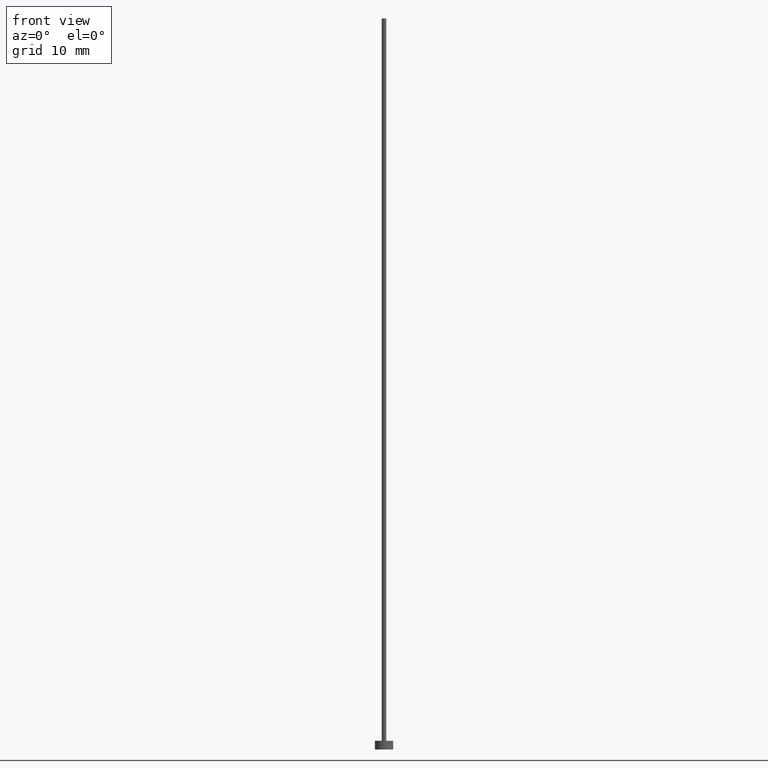
[diagram: clean part render]
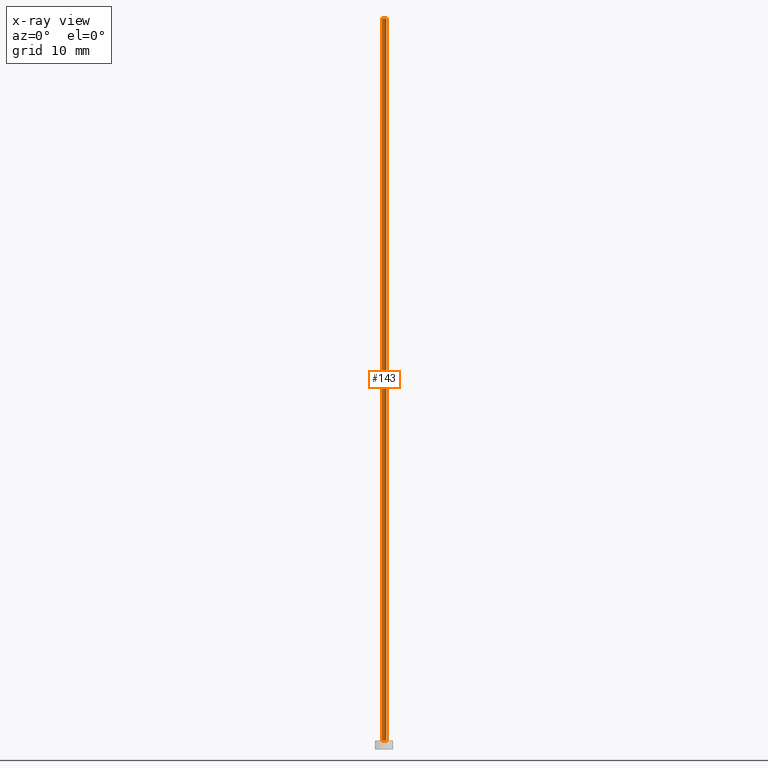
[diagram: x-ray — body ghosted, one internal face saturated and labeled with its STEP entity id]
A machine part, front view, then the same camera in x-ray: the body is ghosted and one INTERNAL B-rep face — a face not visible from any outside direction — is saturated and labeled: STEP entity #143.
In plain terms, the highlighted cylindrical surface (edge-blend (fillet) strip) has radius 0.3 mm, axis along (-0, -0, -1).
Its self-contained STEP definition (entity closure, byte-faithful):
#7 = DIRECTION ( 'NONE',  ( -0.000000000000000000, -0.000000000000000000, -1.000000000000000000 ) ) ;
#13 = ORIENTED_EDGE ( 'NONE', *, *, #102, .T. ) ;
#17 = DIRECTION ( 'NONE',  ( 0.000000000000000000, 0.000000000000000000, 1.000000000000000000 ) ) ;
#20 = VERTEX_POINT ( 'NONE', #122 ) ;
#33 = EDGE_CURVE ( 'NONE', #40, #20, #219, .T. ) ;
#35 = VERTEX_POINT ( 'NONE', #179 ) ;
#40 = VERTEX_POINT ( 'NONE', #222 ) ;
#42 = VECTOR ( 'NONE', #7, 1000.000000000000000 ) ;
#49 = AXIS2_PLACEMENT_3D ( 'NONE', #184, #205, #153 ) ;
#66 = VECTOR ( 'NONE', #71, 1000.000000000000000 ) ;
#71 = DIRECTION ( 'NONE',  ( -0.000000000000000000, -0.000000000000000000, -1.000000000000000000 ) ) ;
#85 = EDGE_CURVE ( 'NONE', #20, #35, #106, .T. ) ;
#88 = DIRECTION ( 'NONE',  ( 1.000000000000000000, 0.000000000000000000, 0.000000000000000000 ) ) ;
#101 = LINE ( 'NONE', #136, #66 ) ;
#102 = EDGE_CURVE ( 'NONE', #40, #207, #101, .T. ) ;
#106 = LINE ( 'NONE', #183, #42 ) ;
#110 = DIRECTION ( 'NONE',  ( 1.000000000000000000, 0.000000000000000000, 0.000000000000000000 ) ) ;
#122 = CARTESIAN_POINT ( 'NONE',  ( -0.2999999999999999889, 0.000000000000000000, 100.0000000000000000 ) ) ;
#129 = ORIENTED_EDGE ( 'NONE', *, *, #193, .T. ) ;
#136 = CARTESIAN_POINT ( 'NONE',  ( 0.2999999999999999889, 3.673940397442058882E-17, 100.0000000000000000 ) ) ;
#143 = ADVANCED_FACE ( 'NONE', ( #181 ), #171, .T. ) ;
#149 = EDGE_LOOP ( 'NONE', ( #255, #13, #129, #247 ) ) ;
#153 = DIRECTION ( 'NONE',  ( -1.000000000000000000, 0.000000000000000000, 0.000000000000000000 ) ) ;
#157 = AXIS2_PLACEMENT_3D ( 'NONE', #163, #245, #88 ) ;
#163 = CARTESIAN_POINT ( 'NONE',  ( 0.000000000000000000, 0.000000000000000000, 100.0000000000000000 ) ) ;
#171 = CYLINDRICAL_SURFACE ( 'NONE', #49, 0.2999999999999999889 ) ;
#179 = CARTESIAN_POINT ( 'NONE',  ( -0.2999999999999999889, 0.000000000000000000, 1.199999999999999956 ) ) ;
#181 = FACE_OUTER_BOUND ( 'NONE', #149, .T. ) ;
#183 = CARTESIAN_POINT ( 'NONE',  ( -0.2999999999999999889, 0.000000000000000000, 100.0000000000000000 ) ) ;
#184 = CARTESIAN_POINT ( 'NONE',  ( 0.000000000000000000, 0.000000000000000000, 100.0000000000000000 ) ) ;
#193 = EDGE_CURVE ( 'NONE', #207, #35, #216, .T. ) ;
#205 = DIRECTION ( 'NONE',  ( -0.000000000000000000, -0.000000000000000000, -1.000000000000000000 ) ) ;
#207 = VERTEX_POINT ( 'NONE', #238 ) ;
#216 = CIRCLE ( 'NONE', #220, 0.2999999999999999889 ) ;
#219 = CIRCLE ( 'NONE', #157, 0.2999999999999999889 ) ;
#220 = AXIS2_PLACEMENT_3D ( 'NONE', #228, #17, #110 ) ;
#222 = CARTESIAN_POINT ( 'NONE',  ( 0.2999999999999999889, 3.673940397442058882E-17, 100.0000000000000000 ) ) ;
#228 = CARTESIAN_POINT ( 'NONE',  ( 0.000000000000000000, 0.000000000000000000, 1.199999999999999956 ) ) ;
#238 = CARTESIAN_POINT ( 'NONE',  ( 0.2999999999999999889, 3.673940397442058882E-17, 1.199999999999999956 ) ) ;
#245 = DIRECTION ( 'NONE',  ( 0.000000000000000000, 0.000000000000000000, 1.000000000000000000 ) ) ;
#247 = ORIENTED_EDGE ( 'NONE', *, *, #85, .F. ) ;
#255 = ORIENTED_EDGE ( 'NONE', *, *, #33, .F. ) ;